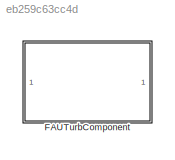
MODEL slx_eb259c63cc4d
KIND library
CONFIG AbsTol = auto
CONFIG EnableMultiTasking = off
CONFIG FixedStep = auto
CONFIG MaxStep = auto
CONFIG MinStep = auto
CONFIG RelTol = 1e-3
CONFIG SampleTimeConstraint = Unconstrained
CONFIG SolverName = VariableStepAuto
CONFIG StartTime = 0.0
CONFIG StopTime = 10.0
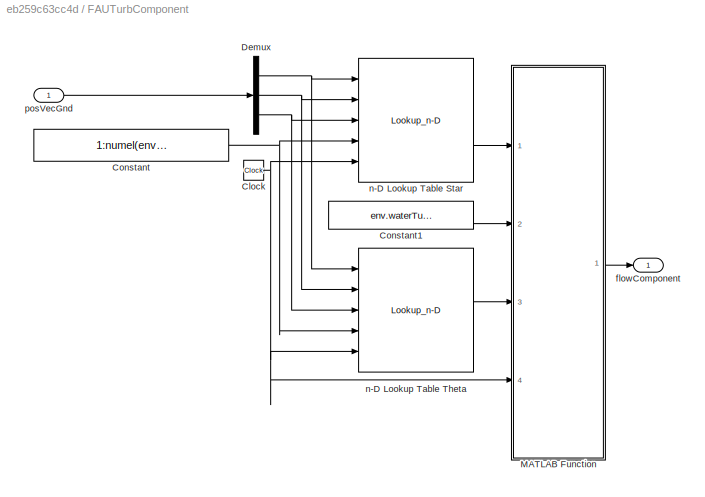
BLOCK [SubSystem] FAUTurbComponent
  Ports = [1, 1]
  RequestExecContextInheritance = off
BLOCK [Clock] FAUTurbComponent/Clock
BLOCK [Constant] FAUTurbComponent/Constant
  Value = 1:numel(env.waterTurb.midFreqs.Value)
BLOCK [Constant] FAUTurbComponent/Constant1
  Value = env.waterTurb.midFreqs.Value
BLOCK [Demux] FAUTurbComponent/Demux
  Outputs = 3
  Ports = [1, 3]
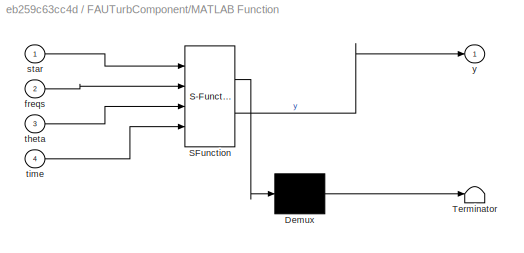
BLOCK [SubSystem] FAUTurbComponent/MATLAB Function
  ErrorFcn = Stateflow.Translate.translate
  PermitHierarchicalResolution = ExplicitOnly
  Ports = [4, 1]
  RequestExecContextInheritance = off
  SFBlockType = MATLAB Function
  TreatAsAtomicUnit = on
BLOCK [Demux] FAUTurbComponent/MATLAB Function/ Demux 
  Outputs = 1
  Ports = [1, 1]
BLOCK [S-Function] FAUTurbComponent/MATLAB Function/ SFunction 
  EnableBusSupport = off
  FunctionName = sf_sfun
  PortCounts = [4 2]
  Ports = [4, 2]
  SFcnIsStateOwnerBlock = off
  SFunctionDeploymentMode = off
  Tag = Stateflow S-Function 2
BLOCK [Terminator] FAUTurbComponent/MATLAB Function/ Terminator 
BLOCK [Inport] FAUTurbComponent/MATLAB Function/freqs
  Port = 2
BLOCK [Inport] FAUTurbComponent/MATLAB Function/star
BLOCK [Inport] FAUTurbComponent/MATLAB Function/theta
  Port = 3
BLOCK [Inport] FAUTurbComponent/MATLAB Function/time
  Port = 4
BLOCK [Outport] FAUTurbComponent/MATLAB Function/y
  VectorParamsAs1DForOutWhenUnconnected = off
BLOCK [Outport] FAUTurbComponent/flowComponent
  VectorParamsAs1DForOutWhenUnconnected = off
BLOCK [Lookup_n-D] FAUTurbComponent/n-D Lookup Table Star
  BreakpointsForDimension1 = env.waterTurb.uStarLUT.Value.Breakpoints(1).Value
  BreakpointsForDimension2 = env.waterTurb.uStarLUT.Value.Breakpoints(2).Value
  BreakpointsForDimension3 = env.waterTurb.uStarLUT.Value.Breakpoints(3).Value
  BreakpointsForDimension4 = env.waterTurb.uStarLUT.Value.Breakpoints(4).Value
  BreakpointsForDimension5 = env.waterTurb.uStarLUT.Value.Breakpoints(5).Value
  InputPortMap = u0,u1,u2,u3,u4
  InternalRulePriority = Speed
  LookupTableObject = x
  NameLocation = top
  NumberOfTableDimensions = 5
  Ports = [5, 1]
  RndMeth = Simplest
  Table = env.waterTurb.uStarLUT.Value.Table.Value
BLOCK [Lookup_n-D] FAUTurbComponent/n-D Lookup Table Theta
  BreakpointsForDimension1 = env.waterTurb.uThLUT.Value.Breakpoints(1).Value
  BreakpointsForDimension2 = env.waterTurb.uThLUT.Value.Breakpoints(2).Value
  BreakpointsForDimension3 = env.waterTurb.uThLUT.Value.Breakpoints(3).Value
  BreakpointsForDimension4 = env.waterTurb.uThLUT.Value.Breakpoints(4).Value
  BreakpointsForDimension5 = env.waterTurb.uThLUT.Value.Breakpoints(5).Value
  InputPortMap = u0,u1,u2,u3,u4
  InternalRulePriority = Speed
  LookupTableObject = x
  NumberOfTableDimensions = 5
  Ports = [5, 1]
  RndMeth = Simplest
  Table = env.waterTurb.uThLUT.Value.Table.Value
BLOCK [Inport] FAUTurbComponent/posVecGnd
NET FAUTurbComponent/Clock:1 -> FAUTurbComponent/MATLAB Function:4, FAUTurbComponent/n-D Lookup Table Star:5, FAUTurbComponent/n-D Lookup Table Theta:5
LINE FAUTurbComponent/Constant1:1 -> FAUTurbComponent/MATLAB Function:2
NET FAUTurbComponent/Constant:1 -> FAUTurbComponent/n-D Lookup Table Star:4, FAUTurbComponent/n-D Lookup Table Theta:4
NET FAUTurbComponent/Demux:1 -> FAUTurbComponent/n-D Lookup Table Star:1, FAUTurbComponent/n-D Lookup Table Theta:1
NET FAUTurbComponent/Demux:2 -> FAUTurbComponent/n-D Lookup Table Star:2, FAUTurbComponent/n-D Lookup Table Theta:2
NET FAUTurbComponent/Demux:3 -> FAUTurbComponent/n-D Lookup Table Star:3, FAUTurbComponent/n-D Lookup Table Theta:3
LINE FAUTurbComponent/MATLAB Function:1 -> FAUTurbComponent/flowComponent:1
LINE FAUTurbComponent/n-D Lookup Table Star:1 -> FAUTurbComponent/MATLAB Function:1
LINE FAUTurbComponent/n-D Lookup Table Theta:1 -> FAUTurbComponent/MATLAB Function:3
LINE FAUTurbComponent/posVecGnd:1 -> FAUTurbComponent/Demux:1
note: NET lines group one-source signal fan-out (src -> all destinations, sorted); 1:1 wires keep LINE
CHART FAUTurbComponent/MATLAB Function states=1 transitions=1
  STATE_LABEL 'eML_blk_kernel()'
  STATE_LABEL 'SCRIPT:\nfunction y = fcn(star,freqs,theta,time)\ny = sum(abs(star(:)).*sin(2*pi*freqs(:)*time+theta(:)));\n\n'
CHART  states=0 transitions=0
